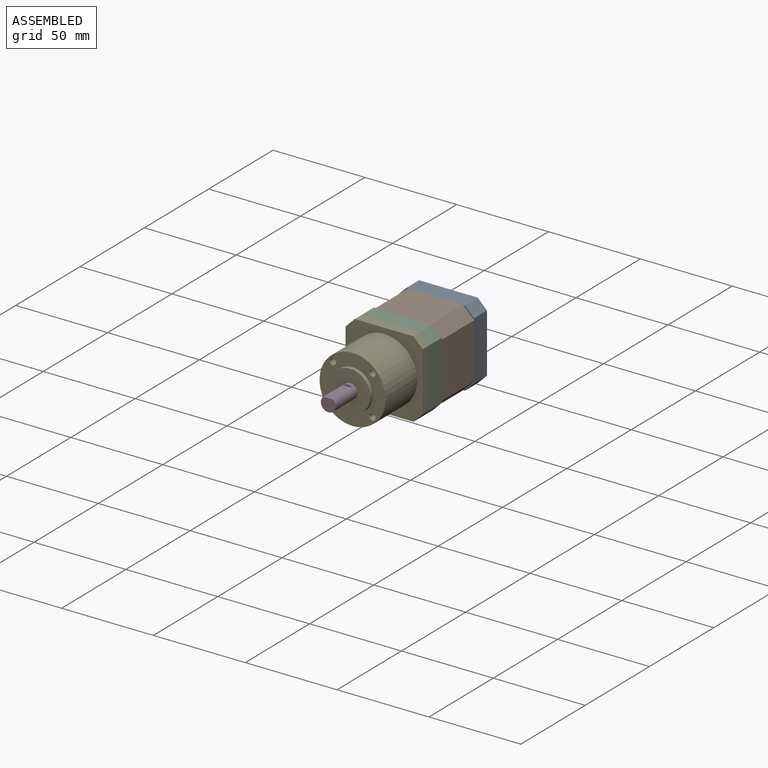
[diagram: assembled view]
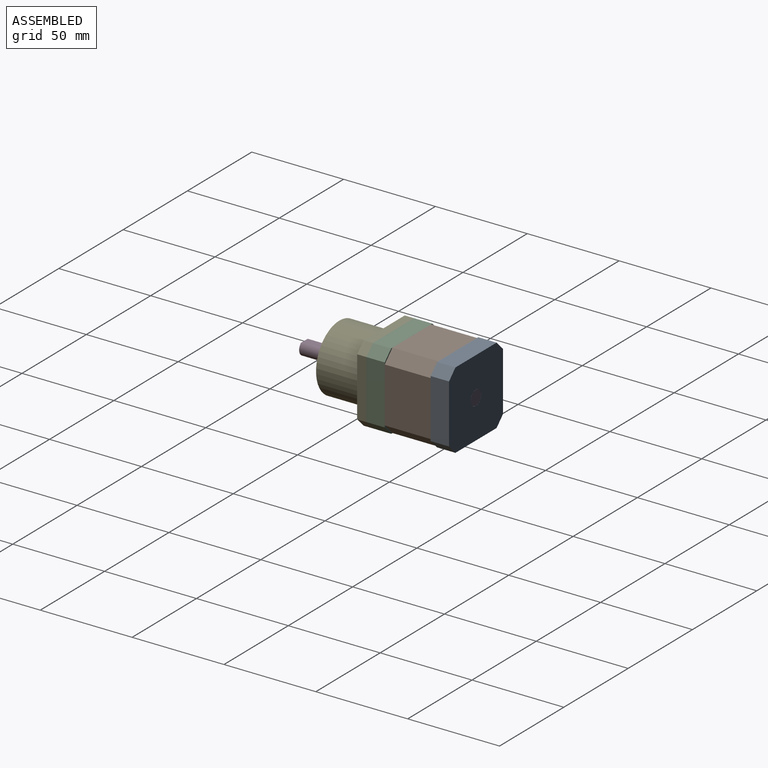
[diagram: assembled view, second angle]
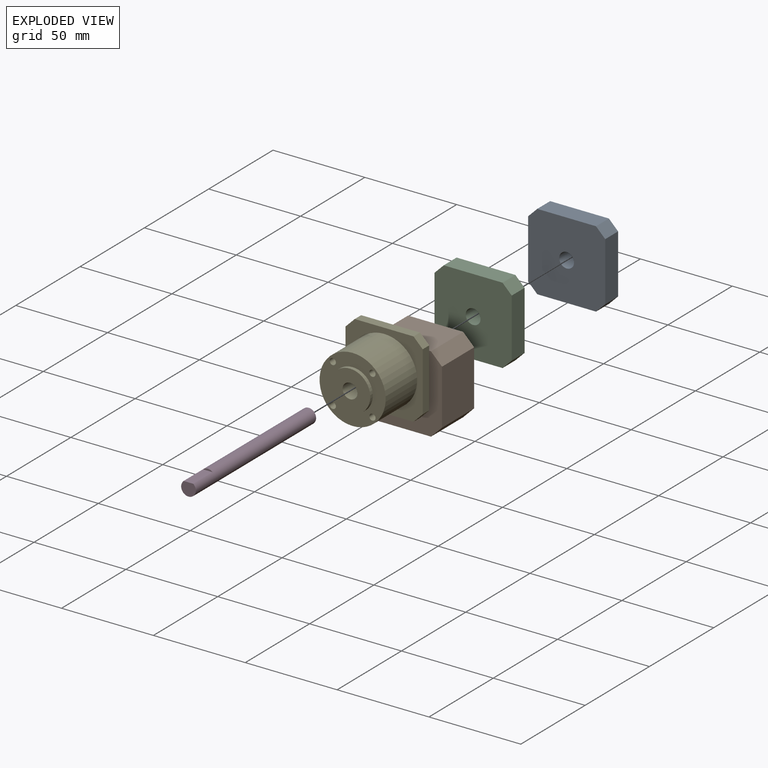
[diagram: exploded view]
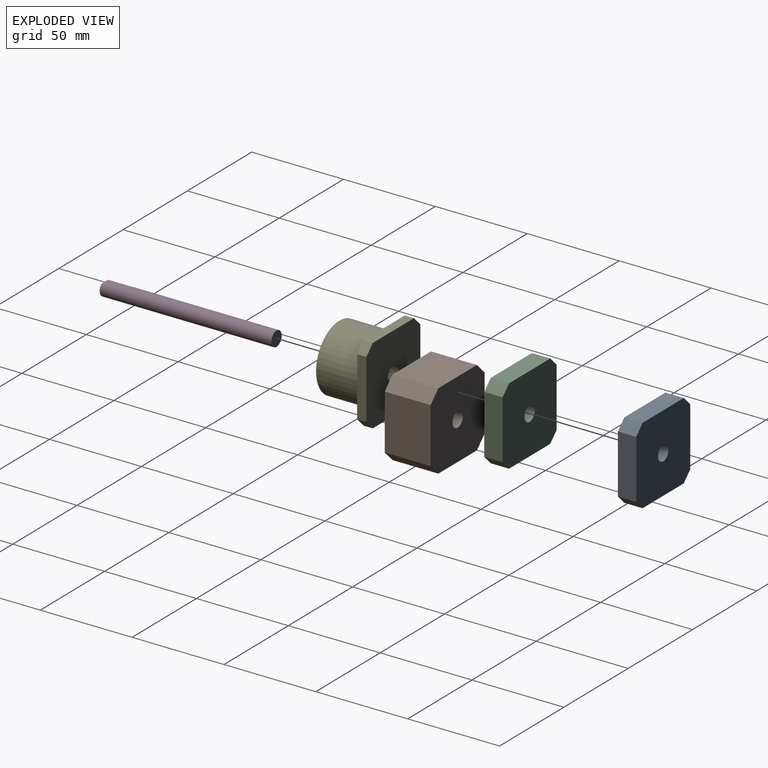
[diagram: exploded view, second angle]
ASSEMBLY  parts=5 mates=4
PART A: 11 faces, bbox 42x10x42 mm
  f0: plane 32x10mm, normal (1,0,0), area 320mm2, adj f4,f5,f9,f10
  f1: plane 32x10mm, normal (0,0,-1), area 320mm2, adj f4,f5,f7,f10
  f2: plane 32x10mm, normal (-1,0,0), area 320mm2, adj f4,f5,f7,f8
  f3: plane 32x10mm, normal (0,0,1), area 320mm2, adj f4,f5,f8,f9
  f4: plane 42x42mm, normal (0,1,0), area 1662.5mm2, adj f0,f1,f2,f3,f6,f7,f8,f9
  f5: plane 42x42mm, normal (0,-1,0), area 1662.5mm2, adj f0,f1,f2,f3,f6,f7,f8,f9
  f6: cylinder r=4.05mm len=10mm, axis (0,-1,0), area 254.5mm2, adj f4,f5
  f7: plane 10x5mm, normal (-0.71,0,-0.71), area 70.7mm2, adj f1,f2,f4,f5
  f8: plane 10x5mm, normal (-0.71,0,0.71), area 70.7mm2, adj f2,f3,f4,f5
  f9: plane 10x5mm, normal (0.71,0,0.71), area 70.7mm2, adj f0,f3,f4,f5
  f10: plane 10x5mm, normal (0.71,0,-0.71), area 70.7mm2, adj f0,f1,f4,f5
PART B: 11 faces, bbox 42x25x42 mm
  f0: plane 30x25mm, normal (1,0,0), area 750mm2, adj f4,f5,f7,f10
  f1: plane 30x25mm, normal (0,0,-1), area 750mm2, adj f4,f5,f7,f8
  f2: plane 30x25mm, normal (-1,0,0), area 750mm2, adj f4,f5,f8,f9
  f3: plane 30x25mm, normal (0,0,1), area 750mm2, adj f4,f5,f9,f10
  f4: plane 42x42mm, normal (0,1,0), area 1640.5mm2, adj f0,f1,f2,f3,f6,f7,f8,f9
  f5: plane 42x42mm, normal (0,-1,0), area 1640.5mm2, adj f0,f1,f2,f3,f6,f7,f8,f9
  f6: cylinder r=4.05mm len=25mm, axis (0,-1,0), area 636.2mm2, adj f4,f5
  f7: plane 25x6mm, normal (0.71,0,-0.71), area 212.1mm2, adj f0,f1,f4,f5
  f8: plane 25x6mm, normal (-0.71,0,-0.71), area 212.1mm2, adj f1,f2,f4,f5
  f9: plane 25x6mm, normal (-0.71,0,0.71), area 212.1mm2, adj f2,f3,f4,f5
  f10: plane 25x6mm, normal (0.71,0,0.71), area 212.1mm2, adj f0,f3,f4,f5
PART C: 11 faces, bbox 42x10x42 mm
  f0: plane 32x10mm, normal (1,0,0), area 320mm2, adj f4,f5,f7,f8
  f1: plane 32x10mm, normal (0,0,1), area 320mm2, adj f4,f5,f8,f9
  f2: plane 32x10mm, normal (-1,0,0), area 320mm2, adj f4,f5,f9,f10
  f3: plane 32x10mm, normal (0,0,-1), area 320mm2, adj f4,f5,f7,f10
  f4: plane 42x42mm, normal (0,1,0), area 1662.5mm2, adj f0,f1,f2,f3,f6,f7,f8,f9
  f5: plane 42x42mm, normal (0,-1,0), area 1662.5mm2, adj f0,f1,f2,f3,f6,f7,f8,f9
  f6: cylinder r=4.05mm len=10mm, axis (0,-1,0), area 254.5mm2, adj f4,f5
  f7: plane 10x5mm, normal (0.71,0,-0.71), area 70.7mm2, adj f0,f3,f4,f5
  f8: plane 10x5mm, normal (0.71,0,0.71), area 70.7mm2, adj f0,f1,f4,f5
  f9: plane 10x5mm, normal (-0.71,0,0.71), area 70.7mm2, adj f1,f2,f4,f5
  f10: plane 10x5mm, normal (-0.71,0,-0.71), area 70.7mm2, adj f2,f3,f4,f5
PART D: 5 faces, bbox 8x93.5x8 mm
  f0: plane 8x7mm, normal (0,-1,0), area 46.6mm2, adj f1,f3
  f1: cylinder r=4mm len=93.5mm, axis (0,1,0), area 2263.2mm2, adj f0,f2,f3,f4
  f2: plane 8x8mm, normal (0,1,0), area 50.3mm2, adj f1
  f3: plane 15x5.29mm, normal (0,0,1), area 79.4mm2, adj f0,f1,f4
  f4: plane 5.29x1mm, normal (0,-1,0), area 3.6mm2, adj f1,f3
PART E: 23 faces, bbox 42x31.5x42 mm
  f0: plane 32x5mm, normal (1,0,0), area 160mm2, adj f4,f5,f21,f22
  f1: plane 32x5mm, normal (0,0,1), area 160mm2, adj f4,f5,f19,f22
  f2: plane 32x5mm, normal (-1,0,0), area 160mm2, adj f4,f5,f19,f20
  f3: plane 32x5mm, normal (0,0,-1), area 160mm2, adj f4,f5,f20,f21
  f4: plane 42x42mm, normal (0,-1,0), area 696.1mm2, adj f0,f1,f2,f3,f6,f19,f20,f21
  f5: plane 42x42mm, normal (0,1,0), area 1662.5mm2, adj f0,f1,f2,f3,f10,f19,f20,f21
  f6: cylinder r=18mm len=36mm, axis (0,1,0), area 2770.9mm2, adj f4,f7
  f7: plane 36x36mm, normal (0,-1,0), area 601.4mm2, adj f6,f8,f12,f14,f16,f18
  f8: cylinder r=11mm len=22mm, axis (0,1,0), area 138.2mm2, adj f7,f9
  f9: plane 22x22mm, normal (0,-1,0), area 328.6mm2, adj f8,f10
  f10: cylinder r=4.05mm len=31.5mm, axis (0,-1,0), area 801.6mm2, adj f5,f9
  f11: cone r=0mm half-angle=59deg, axis (0,-1,0), area 10.6mm2, adj f12
  f12: cylinder r=1.7mm len=8mm, axis (0,-1,0), area 85.5mm2, adj f7,f11
  f13: cone r=0mm half-angle=59deg, axis (0,-1,0), area 10.6mm2, adj f14
  f14: cylinder r=1.7mm len=8mm, axis (0,-1,0), area 85.5mm2, adj f7,f13
  f15: cone r=0mm half-angle=59deg, axis (0,-1,0), area 10.6mm2, adj f16
  f16: cylinder r=1.7mm len=8mm, axis (0,-1,0), area 85.5mm2, adj f7,f15
  f17: cone r=0mm half-angle=59deg, axis (0,-1,0), area 10.6mm2, adj f18
  f18: cylinder r=1.7mm len=8mm, axis (0,-1,0), area 85.5mm2, adj f7,f17
  f19: plane 5x5mm, normal (-0.71,0,0.71), area 35.4mm2, adj f1,f2,f4,f5
  f20: plane 5x5mm, normal (-0.71,0,-0.71), area 35.4mm2, adj f2,f3,f4,f5
  f21: plane 5x5mm, normal (0.71,0,-0.71), area 35.4mm2, adj f0,f3,f4,f5
  f22: plane 5x5mm, normal (0.71,0,0.71), area 35.4mm2, adj f0,f1,f4,f5
PLACE A t=(-31.86,-20.12,-5.21)mm
PLACE B t=(-31.86,-20.12,-5.21)mm
PLACE C t=(-31.86,-20.12,-5.21)mm
PLACE D t=(-31.86,-20.12,-5.21)mm
PLACE E t=(-31.86,-20.12,-5.21)mm fixed
MATE fastened B.f6 <-> C.f6  axis (0,-1,0) through (-31.86,-10.12,-5.21)mm
MATE fastened E.f10 <-> C.f6  axis (0,1,0) through (-31.86,-20.12,-5.21)mm
MATE fastened A.f6 <-> B.f6  axis (0,-1,0) through (-31.86,14.88,-5.21)mm
MATE fastened D.f1 <-> A.f6  axis (0,1,0) through (-31.86,24.88,-5.21)mm
